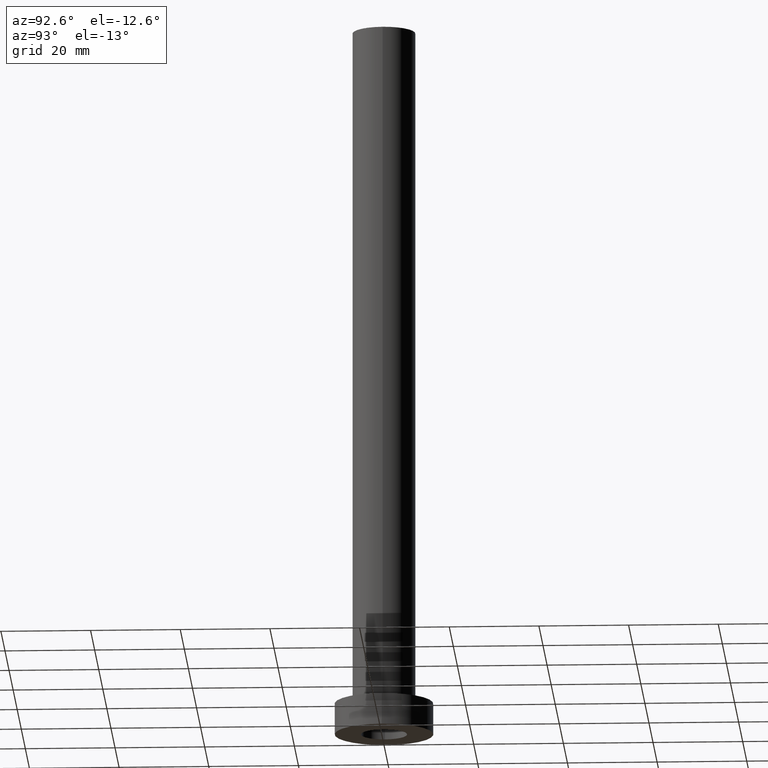
[diagram: clean part render]
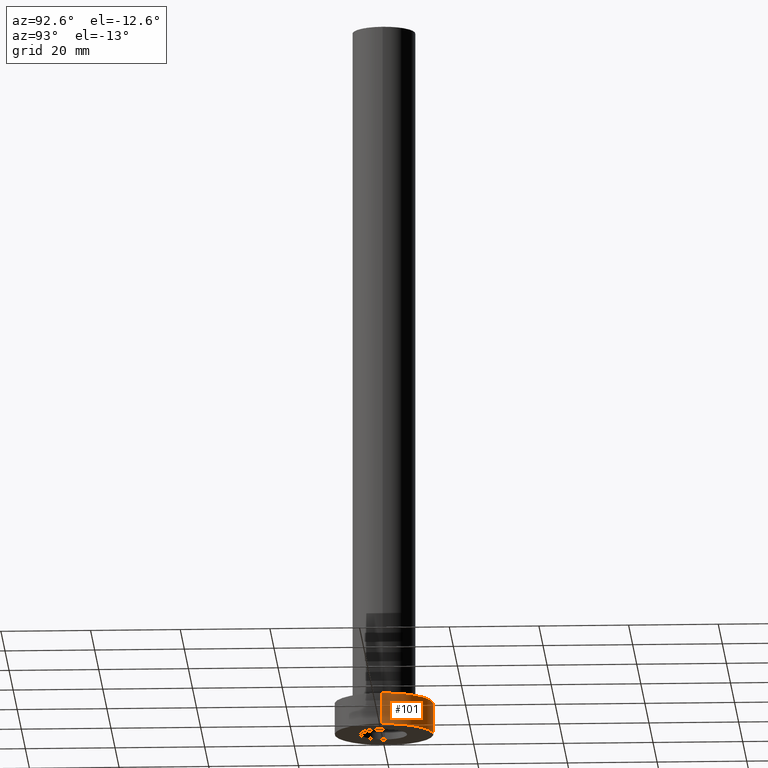
[diagram: same view with one face highlighted and labeled with its STEP entity id]
A machine part, auxiliary view. The second image highlights one B-rep face of the part: STEP entity #101.
In plain terms, the highlighted cylindrical surface (partial cylindrical patch) has radius 11 mm, axis along (-0, -0, -1).
Its self-contained STEP definition (entity closure, byte-faithful):
#9 = ORIENTED_EDGE ( 'NONE', *, *, #387, .T. ) ;
#19 = EDGE_LOOP ( 'NONE', ( #174, #9, #186, #321 ) ) ;
#26 = CARTESIAN_POINT ( 'NONE',  ( 0.000000000000000000, 0.000000000000000000, 7.000000000000000000 ) ) ;
#47 = VERTEX_POINT ( 'NONE', #136 ) ;
#75 = DIRECTION ( 'NONE',  ( 0.000000000000000000, 0.000000000000000000, 1.000000000000000000 ) ) ;
#81 = DIRECTION ( 'NONE',  ( 1.000000000000000000, 0.000000000000000000, 0.000000000000000000 ) ) ;
#89 = CARTESIAN_POINT ( 'NONE',  ( -11.00000000000000000, 0.000000000000000000, 7.000000000000000000 ) ) ;
#100 = AXIS2_PLACEMENT_3D ( 'NONE', #299, #75, #81 ) ;
#101 = ADVANCED_FACE ( 'NONE', ( #120 ), #335, .T. ) ;
#103 = VERTEX_POINT ( 'NONE', #89 ) ;
#120 = FACE_OUTER_BOUND ( 'NONE', #19, .T. ) ;
#126 = VECTOR ( 'NONE', #184, 1000.000000000000000 ) ;
#136 = CARTESIAN_POINT ( 'NONE',  ( 11.00000000000000000, 1.347111479062088405E-15, 0.000000000000000000 ) ) ;
#147 = VERTEX_POINT ( 'NONE', #420 ) ;
#172 = LINE ( 'NONE', #257, #312 ) ;
#174 = ORIENTED_EDGE ( 'NONE', *, *, #287, .F. ) ;
#176 = DIRECTION ( 'NONE',  ( 1.000000000000000000, 0.000000000000000000, 0.000000000000000000 ) ) ;
#184 = DIRECTION ( 'NONE',  ( -0.000000000000000000, -0.000000000000000000, -1.000000000000000000 ) ) ;
#186 = ORIENTED_EDGE ( 'NONE', *, *, #408, .T. ) ;
#192 = DIRECTION ( 'NONE',  ( 0.000000000000000000, 0.000000000000000000, 1.000000000000000000 ) ) ;
#245 = CIRCLE ( 'NONE', #285, 11.00000000000000000 ) ;
#251 = LINE ( 'NONE', #365, #126 ) ;
#257 = CARTESIAN_POINT ( 'NONE',  ( 11.00000000000000000, 1.347111479062088405E-15, 7.000000000000000000 ) ) ;
#272 = DIRECTION ( 'NONE',  ( -0.000000000000000000, -0.000000000000000000, -1.000000000000000000 ) ) ;
#285 = AXIS2_PLACEMENT_3D ( 'NONE', #440, #192, #176 ) ;
#287 = EDGE_CURVE ( 'NONE', #147, #103, #245, .T. ) ;
#299 = CARTESIAN_POINT ( 'NONE',  ( 0.000000000000000000, 0.000000000000000000, 0.000000000000000000 ) ) ;
#304 = CIRCLE ( 'NONE', #100, 11.00000000000000000 ) ;
#312 = VECTOR ( 'NONE', #400, 1000.000000000000000 ) ;
#321 = ORIENTED_EDGE ( 'NONE', *, *, #427, .F. ) ;
#335 = CYLINDRICAL_SURFACE ( 'NONE', #418, 11.00000000000000000 ) ;
#355 = VERTEX_POINT ( 'NONE', #457 ) ;
#365 = CARTESIAN_POINT ( 'NONE',  ( -11.00000000000000000, 0.000000000000000000, 7.000000000000000000 ) ) ;
#387 = EDGE_CURVE ( 'NONE', #147, #47, #172, .T. ) ;
#400 = DIRECTION ( 'NONE',  ( -0.000000000000000000, -0.000000000000000000, -1.000000000000000000 ) ) ;
#408 = EDGE_CURVE ( 'NONE', #47, #355, #304, .T. ) ;
#412 = DIRECTION ( 'NONE',  ( -1.000000000000000000, 0.000000000000000000, 0.000000000000000000 ) ) ;
#418 = AXIS2_PLACEMENT_3D ( 'NONE', #26, #272, #412 ) ;
#420 = CARTESIAN_POINT ( 'NONE',  ( 11.00000000000000000, 1.347111479062088405E-15, 7.000000000000000000 ) ) ;
#427 = EDGE_CURVE ( 'NONE', #103, #355, #251, .T. ) ;
#440 = CARTESIAN_POINT ( 'NONE',  ( 0.000000000000000000, 0.000000000000000000, 7.000000000000000000 ) ) ;
#457 = CARTESIAN_POINT ( 'NONE',  ( -11.00000000000000000, 0.000000000000000000, 0.000000000000000000 ) ) ;